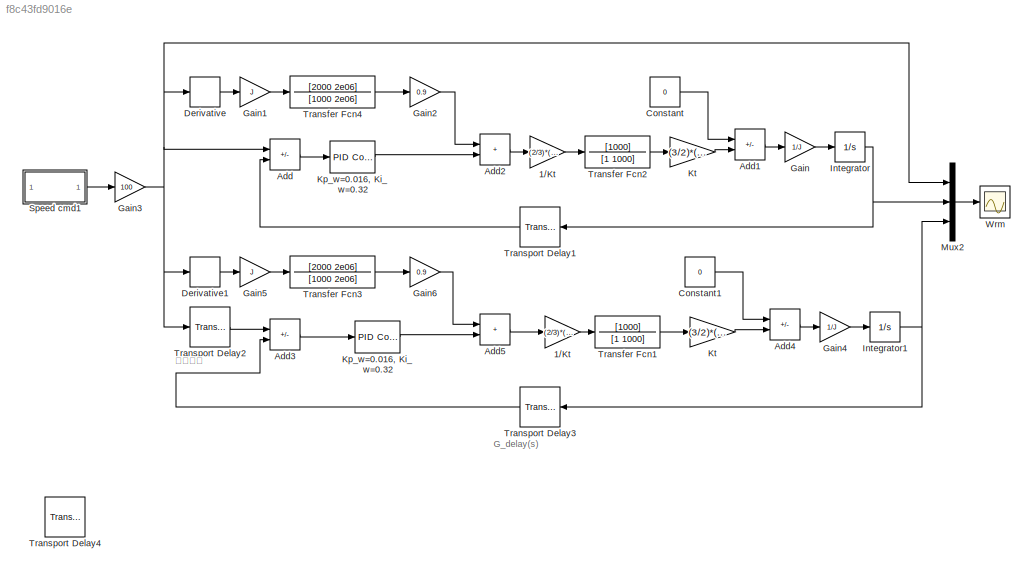
MODEL slx_f8c43fd9016e
KIND model
CONFIG AbsTol = auto
CONFIG EnableMultiTasking = off
CONFIG FixedStep = auto
CONFIG MaxStep = auto
CONFIG MinStep = auto
CONFIG RelTol = 1e-3
CONFIG SampleTimeConstraint = Unconstrained
CONFIG SolverName = VariableStepAuto
CONFIG StartTime = 0.0
CONFIG StopTime = 2
BLOCK [Gain] 1//Kt 
  Gain = (2/3)*(2/4)*(1/0.03)
BLOCK [Gain] 1//Kt  
  Gain = (2/3)*(2/4)*(1/0.03)
BLOCK [Sum] Add
  IconShape = rectangular
  Inputs = +-
BLOCK [Sum] Add1
  IconShape = rectangular
  Inputs = -+
BLOCK [Sum] Add2
  IconShape = rectangular
BLOCK [Sum] Add3
  IconShape = rectangular
  Inputs = +-
BLOCK [Sum] Add4
  IconShape = rectangular
  Inputs = -+
BLOCK [Sum] Add5
  IconShape = rectangular
BLOCK [Constant] Constant
  Value = 0
BLOCK [Constant] Constant1
  Value = 0
BLOCK [Derivative] Derivative
BLOCK [Derivative] Derivative1
BLOCK [Gain] Gain
  Gain = 1/J
BLOCK [Gain] Gain1
  Gain = J
BLOCK [Gain] Gain2
  Gain = 0.9
BLOCK [Gain] Gain3
  Gain = 100
BLOCK [Gain] Gain4
  Gain = 1/J
BLOCK [Gain] Gain5
  Gain = J
BLOCK [Gain] Gain6
  Gain = 0.9
BLOCK [Integrator] Integrator
BLOCK [Integrator] Integrator1
BLOCK [Reference] Kp_w=0.016, Ki_w=0.32   REF=slpidlib/PID Controller
  LibrarySourceBlock = simulink/Continuous/PID Controller
  SourceBlock = slpidlib/PID Controller
  SourceType = PID 1dof
BLOCK [Reference] Kp_w=0.016, Ki_w=0.32    REF=slpidlib/PID Controller
  LibrarySourceBlock = simulink/Continuous/PID Controller
  SourceBlock = slpidlib/PID Controller
  SourceType = PID 1dof
BLOCK [Gain] Kt 
  Gain = (3/2)*(4/2)*0.03
BLOCK [Gain] Kt  
  Gain = (3/2)*(4/2)*0.03
BLOCK [Mux] Mux2
  DisplayOption = bar
  Inputs = 3
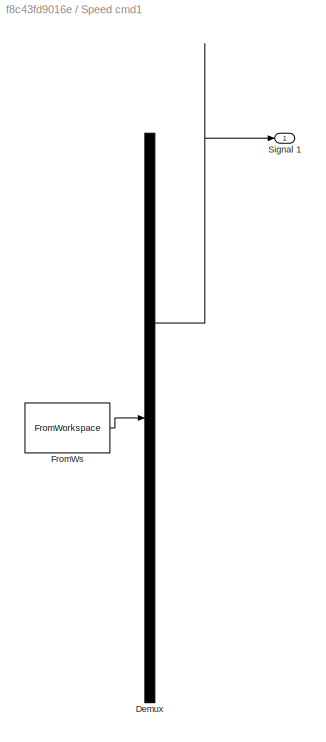
BLOCK [SubSystem] Speed cmd1
  ClipboardFcn = sigbuilder_block('clipboard');
  CloseFcn = sigbuilder_block('close');
  ContinueFcn = sigbuilder_block('continue');
  CopyFcn = sigbuilder_block('copy');
  DeleteFcn = sigbuilder_block('delete');
  LoadFcn = sigbuilder_block('load');
  MaskHideContents = on
  ModelCloseFcn = sigbuilder_block('modelClose');
  NameChangeFcn = sigbuilder_block('namechange');
  OpenFcn = sigbuilder_block('open',[437.6 199.2 550.4 400 ]);
  PauseFcn = sigbuilder_block('pause');
  PreSaveFcn = sigbuilder_block('preSave');
  StartFcn = sigbuilder_block('start');
  StopFcn = sigbuilder_block('stop');
  Tag = STV Subsys
BLOCK [Demux] Speed cmd1/Demux
  DisplayOption = none
  Outputs = 1
  Tag = STV Demux
BLOCK [FromWorkspace] Speed cmd1/FromWs
  Tag = STV FromWs
  VariableName = tuvar
BLOCK [Outport] Speed cmd1/Signal 1
  Tag = STV Outport
BLOCK [TransferFcn] Transfer Fcn1
  Denominator = [1 1000]
  Numerator = [1000]
BLOCK [TransferFcn] Transfer Fcn2
  Denominator = [1 1000]
  Numerator = [1000]
BLOCK [TransferFcn] Transfer Fcn3
  Denominator = [1000 2e06]
  Numerator = [2000 2e06]
BLOCK [TransferFcn] Transfer Fcn4
  Denominator = [1000 2e06]
  Numerator = [2000 2e06]
BLOCK [TransportDelay] Transport Delay1
  DelayTime = (1/1000)
  NameLocation = top
BLOCK [TransportDelay] Transport Delay2
  DelayTime = (1/1000)
BLOCK [TransportDelay] Transport Delay3
  DelayTime = (1/1000)
  NameLocation = top
BLOCK [TransportDelay] Transport Delay4
  DelayTime = (1/1000)
BLOCK [Scope] Wrm
  Floating = off
  NumInputPorts = 1
  ScopeSpecificationString = Simulink.scopes.TimeScopeBlockCfg('CurrentConfiguration', extmgr.ConfigurationSet(extmgr.Configuration('Core','General UI',true,'FigureColor',[1 1 1]),extmgr.Configuration('Core','Source UI',true),extmgr.Configuration('Sources','WiredSimulink',true,'DataLoggingVariableName','ScopeData1'),extmgr.Configuration('Visuals','Time Domain',true,'SerializedDisplays',{struct('MinYLimReal','39.39499','MaxYLi...<+1957ch>
ANNOTATION (root): G_delay(s)
ANNOTATION (root): 命令延迟
LINE 1//Kt  :1 -> Transfer Fcn1:1
LINE 1//Kt :1 -> Transfer Fcn2:1
LINE Add1:1 -> Gain:1
LINE Add2:1 -> 1//Kt :1
LINE Add3:1 -> Kp_w=0.016, Ki_w=0.32  :1
LINE Add4:1 -> Gain4:1
LINE Add5:1 -> 1//Kt  :1
LINE Add:1 -> Kp_w=0.016, Ki_w=0.32 :1
LINE Constant1:1 -> Add4:1
LINE Constant:1 -> Add1:1
LINE Derivative1:1 -> Gain5:1
LINE Derivative:1 -> Gain1:1
LINE Gain1:1 -> Transfer Fcn4:1
LINE Gain2:1 -> Add2:1
NET Gain3:1 -> Add:1, Derivative1:1, Derivative:1, Mux2:1, Transport Delay2:1
LINE Gain4:1 -> Integrator1:1
LINE Gain5:1 -> Transfer Fcn3:1
LINE Gain6:1 -> Add5:1
LINE Gain:1 -> Integrator:1
NET Integrator1:1 -> Mux2:3, Transport Delay3:1
NET Integrator:1 -> Mux2:2, Transport Delay1:1
LINE Kp_w=0.016, Ki_w=0.32  :1 -> Add5:2
LINE Kp_w=0.016, Ki_w=0.32 :1 -> Add2:2
LINE Kt  :1 -> Add4:2
LINE Kt :1 -> Add1:2
LINE Mux2:1 -> Wrm:1
LINE Speed cmd1:1 -> Gain3:1
LINE Transfer Fcn1:1 -> Kt  :1
LINE Transfer Fcn2:1 -> Kt :1
LINE Transfer Fcn3:1 -> Gain6:1
LINE Transfer Fcn4:1 -> Gain2:1
LINE Transport Delay1:1 -> Add:2
LINE Transport Delay2:1 -> Add3:1
LINE Transport Delay3:1 -> Add3:2
note: NET lines group one-source signal fan-out (src -> all destinations, sorted); 1:1 wires keep LINE
